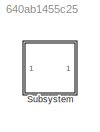
MODEL slx_640ab1455c25
KIND model
CONFIG AbsTol = auto
CONFIG EnableMultiTasking = off
CONFIG FixedStep = auto
CONFIG MaxStep = auto
CONFIG MinStep = auto
CONFIG RelTol = 1e-3
CONFIG SampleTimeConstraint = Unconstrained
CONFIG SolverName = VariableStepAuto
CONFIG StartTime = 0.0
CONFIG StopTime = 10.0
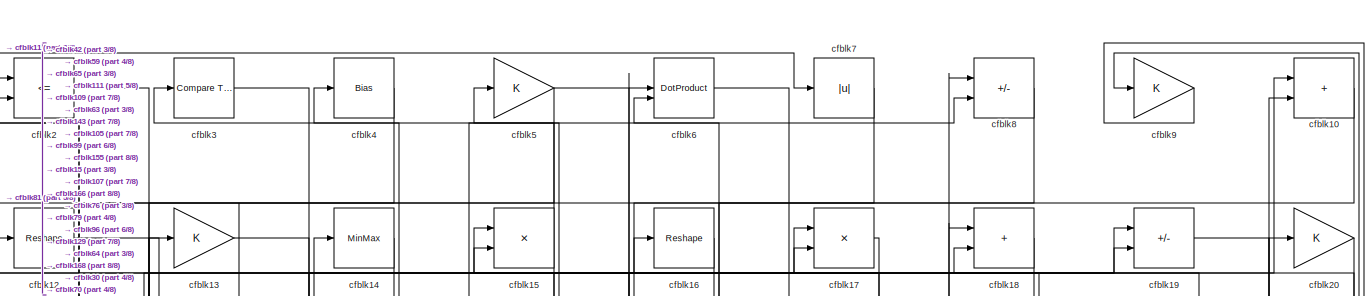
[diagram: Subsystem - part 1/8, full width, top band]
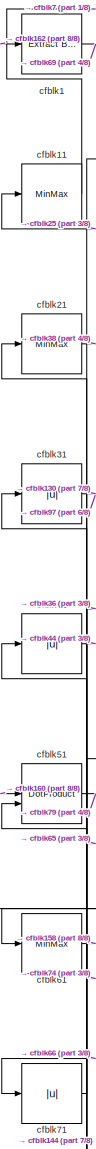
[diagram: Subsystem - part 2/8, top left region]
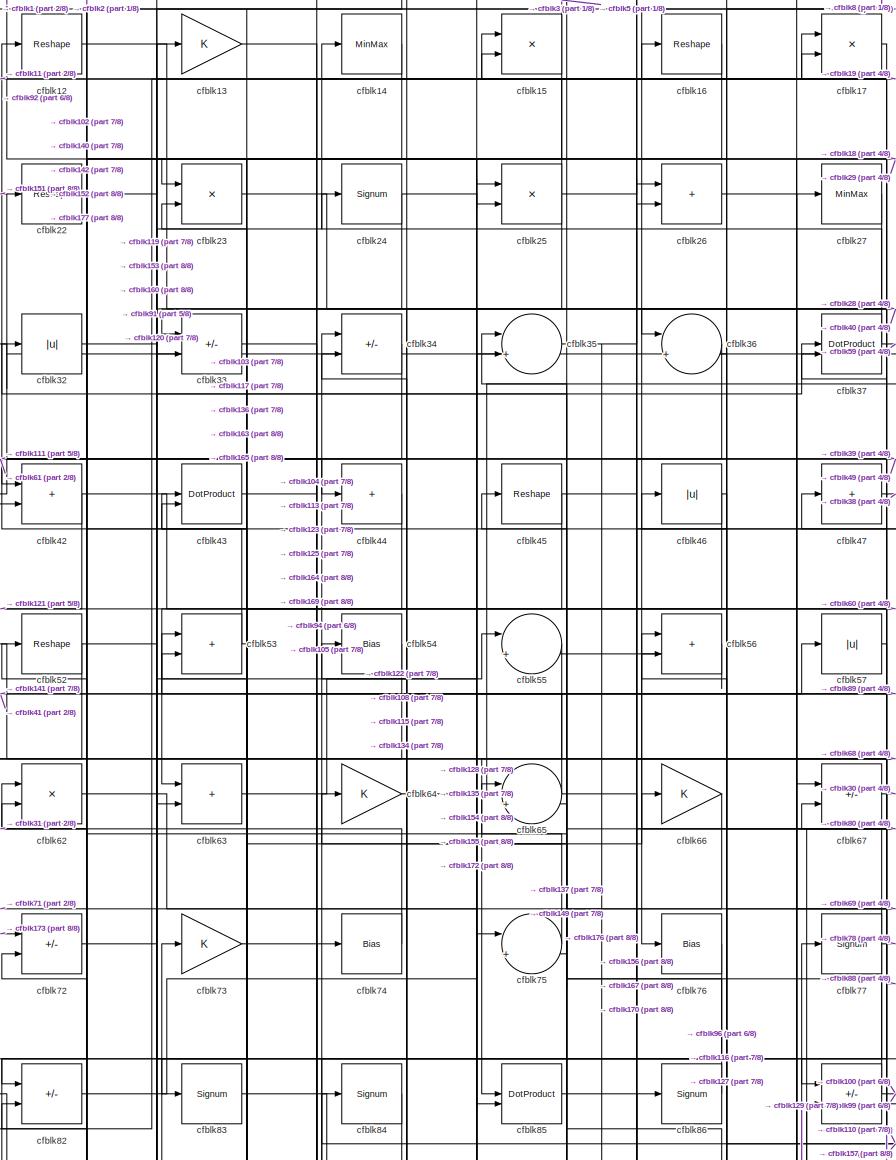
[diagram: Subsystem - part 3/8, top center region]
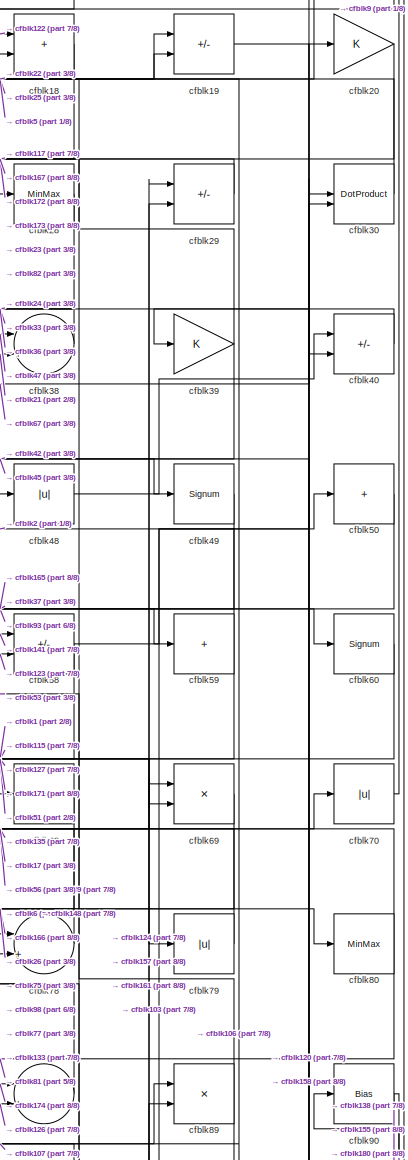
[diagram: Subsystem - part 4/8, top right region]
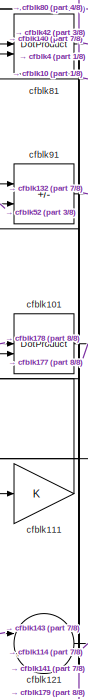
[diagram: Subsystem - part 5/8, middle left region]
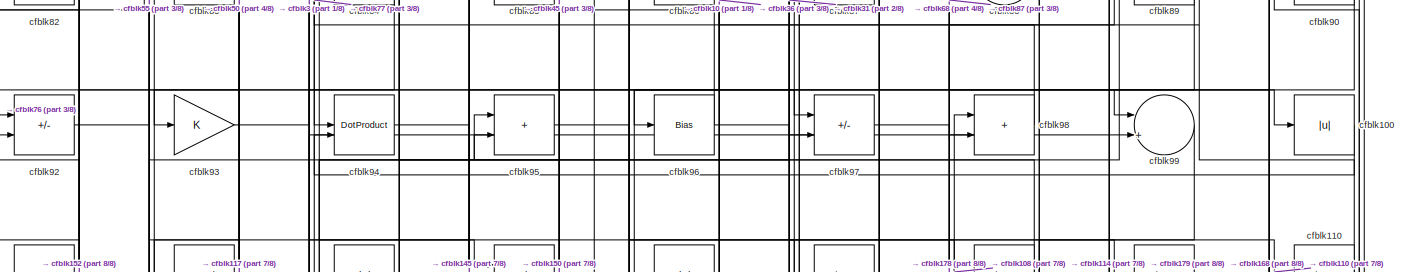
[diagram: Subsystem - part 6/8, full width, middle band]
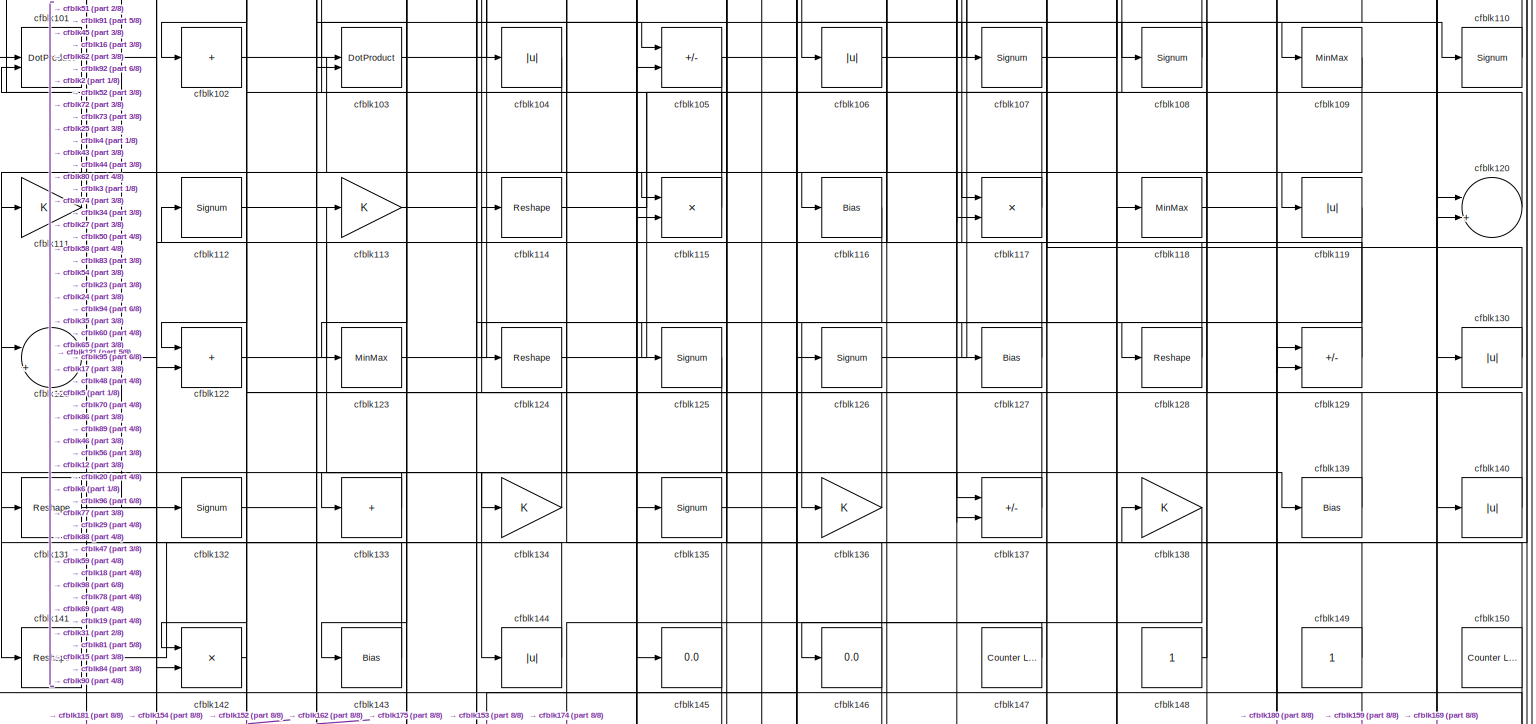
[diagram: Subsystem - part 7/8, full width, middle band]
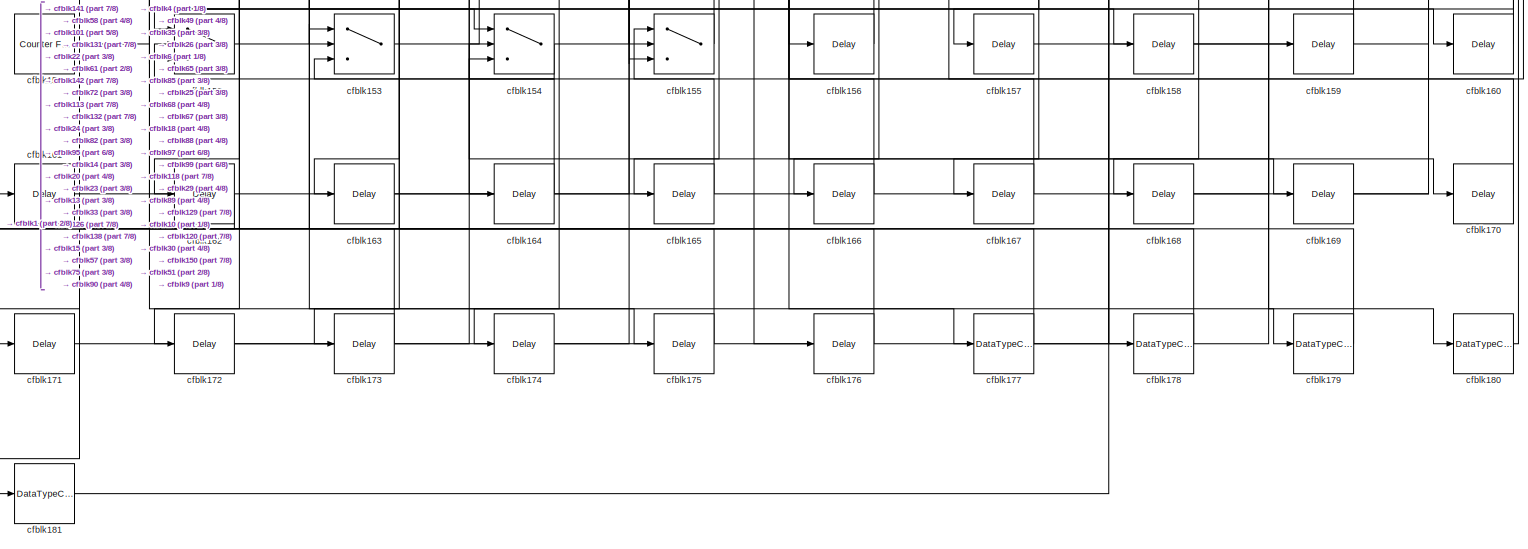
[diagram: Subsystem - part 8/8, full width, bottom band]
BLOCK [SubSystem] Subsystem
BLOCK [Reference] Subsystem/cfblk1  REF=simulink/Logic and Bit
Operations/Extract Bits
  LibrarySourceBlock = hdlsllib/Logic and Bit\nOperations/Extract Bits
  SourceBlock = simulink/Logic and Bit\nOperations/Extract Bits
  SourceType = Extract Bits
BLOCK [Sum] Subsystem/cfblk10
  IconShape = rectangular
  OutDataTypeStr = uint8
BLOCK [Abs] Subsystem/cfblk100
  OutDataTypeStr = uint8
  SaturateOnIntegerOverflow = off
BLOCK [DotProduct] Subsystem/cfblk101
  OutDataTypeStr = uint8
BLOCK [Sum] Subsystem/cfblk102
  IconShape = rectangular
  Inputs = +
  OutDataTypeStr = uint8
BLOCK [DotProduct] Subsystem/cfblk103
  OutDataTypeStr = uint8
BLOCK [Abs] Subsystem/cfblk104
  OutDataTypeStr = uint8
  SaturateOnIntegerOverflow = off
BLOCK [Sum] Subsystem/cfblk105
  IconShape = rectangular
  Inputs = +-
  OutDataTypeStr = uint8
BLOCK [Abs] Subsystem/cfblk106
  OutDataTypeStr = uint8
  SaturateOnIntegerOverflow = off
BLOCK [Signum] Subsystem/cfblk107
BLOCK [Signum] Subsystem/cfblk108
BLOCK [MinMax] Subsystem/cfblk109
  OutDataTypeStr = uint8
BLOCK [MinMax] Subsystem/cfblk11
  OutDataTypeStr = uint8
BLOCK [Signum] Subsystem/cfblk110
BLOCK [Gain] Subsystem/cfblk111
  OutDataTypeStr = uint8
BLOCK [Signum] Subsystem/cfblk112
BLOCK [Gain] Subsystem/cfblk113
  OutDataTypeStr = uint8
BLOCK [Reshape] Subsystem/cfblk114
BLOCK [Product] Subsystem/cfblk115
  Inputs = */
  OutDataTypeStr = uint8
  RndMeth = Zero
  SaturateOnIntegerOverflow = on
BLOCK [Bias] Subsystem/cfblk116
  Bias = 0.0
  SaturateOnIntegerOverflow = off
BLOCK [Product] Subsystem/cfblk117
  Inputs = */
  OutDataTypeStr = uint8
  RndMeth = Zero
  SaturateOnIntegerOverflow = on
BLOCK [MinMax] Subsystem/cfblk118
  OutDataTypeStr = uint8
BLOCK [Abs] Subsystem/cfblk119
  OutDataTypeStr = uint8
  SaturateOnIntegerOverflow = off
BLOCK [Reshape] Subsystem/cfblk12
BLOCK [Sum] Subsystem/cfblk120
  Inputs = |++
  OutDataTypeStr = uint8
BLOCK [Sum] Subsystem/cfblk121
  Inputs = |++
  OutDataTypeStr = uint8
BLOCK [Sum] Subsystem/cfblk122
  IconShape = rectangular
  OutDataTypeStr = uint8
BLOCK [MinMax] Subsystem/cfblk123
  OutDataTypeStr = uint8
BLOCK [Reshape] Subsystem/cfblk124
BLOCK [Signum] Subsystem/cfblk125
BLOCK [Signum] Subsystem/cfblk126
BLOCK [Bias] Subsystem/cfblk127
  Bias = 0.0
  SaturateOnIntegerOverflow = off
BLOCK [Reshape] Subsystem/cfblk128
BLOCK [Sum] Subsystem/cfblk129
  IconShape = rectangular
  Inputs = +-
  OutDataTypeStr = uint8
BLOCK [Gain] Subsystem/cfblk13
  OutDataTypeStr = uint8
BLOCK [Abs] Subsystem/cfblk130
  OutDataTypeStr = uint8
  SaturateOnIntegerOverflow = off
BLOCK [Reshape] Subsystem/cfblk131
BLOCK [Signum] Subsystem/cfblk132
BLOCK [Sum] Subsystem/cfblk133
  IconShape = rectangular
  Inputs = +
  OutDataTypeStr = uint8
BLOCK [Gain] Subsystem/cfblk134
  OutDataTypeStr = uint8
BLOCK [Signum] Subsystem/cfblk135
BLOCK [Gain] Subsystem/cfblk136
  OutDataTypeStr = uint8
BLOCK [Sum] Subsystem/cfblk137
  IconShape = rectangular
  Inputs = +-
  OutDataTypeStr = uint8
BLOCK [Gain] Subsystem/cfblk138
  OutDataTypeStr = uint8
BLOCK [Bias] Subsystem/cfblk139
  Bias = 0.0
  SaturateOnIntegerOverflow = off
BLOCK [MinMax] Subsystem/cfblk14
  OutDataTypeStr = uint8
BLOCK [Abs] Subsystem/cfblk140
  OutDataTypeStr = uint8
  SaturateOnIntegerOverflow = off
BLOCK [Reshape] Subsystem/cfblk141
BLOCK [Product] Subsystem/cfblk142
  Inputs = */
  OutDataTypeStr = uint8
  RndMeth = Zero
  SaturateOnIntegerOverflow = on
BLOCK [Bias] Subsystem/cfblk143
  Bias = 0.0
  SaturateOnIntegerOverflow = off
BLOCK [Abs] Subsystem/cfblk144
  OutDataTypeStr = uint8
  SaturateOnIntegerOverflow = off
BLOCK [Display] Subsystem/cfblk145
  Decimation = 1
BLOCK [Display] Subsystem/cfblk146
  Decimation = 1
BLOCK [Reference] Subsystem/cfblk147  REF=hdlsllib/Sources/Counter
Limited
  SourceBlock = hdlsllib/Sources/Counter\nLimited
  SourceType = Counter Limited
BLOCK [Constant] Subsystem/cfblk148
  OutDataTypeStr = uint8
  SampleTime = -1
BLOCK [Constant] Subsystem/cfblk149
  OutDataTypeStr = uint8
  SampleTime = -1
BLOCK [Product] Subsystem/cfblk15
  Inputs = */
  OutDataTypeStr = uint8
  RndMeth = Zero
  SaturateOnIntegerOverflow = on
BLOCK [Reference] Subsystem/cfblk150  REF=hdlsllib/Sources/Counter
Limited
  SourceBlock = hdlsllib/Sources/Counter\nLimited
  SourceType = Counter Limited
BLOCK [Reference] Subsystem/cfblk151  REF=hdlsllib/Sources/Counter
Free-Running
  SourceBlock = hdlsllib/Sources/Counter\nFree-Running
  SourceType = Counter Free-Running
BLOCK [Switch] Subsystem/cfblk152
  InputSameDT = off
  OutDataTypeStr = uint8
  SaturateOnIntegerOverflow = off
BLOCK [Switch] Subsystem/cfblk153
  InputSameDT = off
  OutDataTypeStr = uint8
  SaturateOnIntegerOverflow = off
BLOCK [Switch] Subsystem/cfblk154
  InputSameDT = off
  OutDataTypeStr = uint8
  SaturateOnIntegerOverflow = off
BLOCK [Switch] Subsystem/cfblk155
  InputSameDT = off
  OutDataTypeStr = uint8
  SaturateOnIntegerOverflow = off
BLOCK [Delay] Subsystem/cfblk156
  InputPortMap = u0
  SampleTime = 1
BLOCK [Delay] Subsystem/cfblk157
  InputPortMap = u0
  SampleTime = 1
BLOCK [Delay] Subsystem/cfblk158
  InputPortMap = u0
  SampleTime = 1
BLOCK [Delay] Subsystem/cfblk159
  InputPortMap = u0
  SampleTime = 1
BLOCK [Reshape] Subsystem/cfblk16
BLOCK [Delay] Subsystem/cfblk160
  InputPortMap = u0
  SampleTime = 1
BLOCK [Delay] Subsystem/cfblk161
  InputPortMap = u0
  SampleTime = 1
BLOCK [Delay] Subsystem/cfblk162
  InputPortMap = u0
  SampleTime = 1
BLOCK [Delay] Subsystem/cfblk163
  InputPortMap = u0
  SampleTime = 1
BLOCK [Delay] Subsystem/cfblk164
  InputPortMap = u0
  SampleTime = 1
BLOCK [Delay] Subsystem/cfblk165
  InputPortMap = u0
  SampleTime = 1
BLOCK [Delay] Subsystem/cfblk166
  InputPortMap = u0
  SampleTime = 1
BLOCK [Delay] Subsystem/cfblk167
  InputPortMap = u0
  SampleTime = 1
BLOCK [Delay] Subsystem/cfblk168
  InputPortMap = u0
  SampleTime = 1
BLOCK [Delay] Subsystem/cfblk169
  InputPortMap = u0
  SampleTime = 1
BLOCK [Product] Subsystem/cfblk17
  Inputs = */
  OutDataTypeStr = uint8
  RndMeth = Zero
  SaturateOnIntegerOverflow = on
BLOCK [Delay] Subsystem/cfblk170
  InputPortMap = u0
  SampleTime = 1
BLOCK [Delay] Subsystem/cfblk171
  InputPortMap = u0
  SampleTime = 1
BLOCK [Delay] Subsystem/cfblk172
  InputPortMap = u0
  SampleTime = 1
BLOCK [Delay] Subsystem/cfblk173
  InputPortMap = u0
  SampleTime = 1
BLOCK [Delay] Subsystem/cfblk174
  InputPortMap = u0
  SampleTime = 1
BLOCK [Delay] Subsystem/cfblk175
  InputPortMap = u0
  SampleTime = 1
BLOCK [Delay] Subsystem/cfblk176
  InputPortMap = u0
  SampleTime = 1
BLOCK [DataTypeConversion] Subsystem/cfblk177
  OutDataTypeStr = uint8
  RndMeth = Floor
  SaturateOnIntegerOverflow = off
BLOCK [DataTypeConversion] Subsystem/cfblk178
  OutDataTypeStr = uint8
  RndMeth = Floor
  SaturateOnIntegerOverflow = off
BLOCK [DataTypeConversion] Subsystem/cfblk179
  OutDataTypeStr = uint8
  RndMeth = Floor
  SaturateOnIntegerOverflow = off
BLOCK [Sum] Subsystem/cfblk18
  IconShape = rectangular
  OutDataTypeStr = uint8
BLOCK [DataTypeConversion] Subsystem/cfblk180
  OutDataTypeStr = uint8
  RndMeth = Floor
  SaturateOnIntegerOverflow = off
BLOCK [DataTypeConversion] Subsystem/cfblk181
  OutDataTypeStr = uint8
  RndMeth = Floor
  SaturateOnIntegerOverflow = off
BLOCK [Sum] Subsystem/cfblk19
  IconShape = rectangular
  Inputs = +-
  OutDataTypeStr = uint8
BLOCK [RelationalOperator] Subsystem/cfblk2
  InputSameDT = off
  Operator = <=
  OutDataTypeStr = boolean
BLOCK [Gain] Subsystem/cfblk20
  OutDataTypeStr = uint8
BLOCK [MinMax] Subsystem/cfblk21
  OutDataTypeStr = uint8
BLOCK [Reshape] Subsystem/cfblk22
BLOCK [Product] Subsystem/cfblk23
  Inputs = */
  OutDataTypeStr = uint8
  RndMeth = Zero
  SaturateOnIntegerOverflow = on
BLOCK [Signum] Subsystem/cfblk24
BLOCK [Product] Subsystem/cfblk25
  Inputs = */
  OutDataTypeStr = uint8
  RndMeth = Zero
  SaturateOnIntegerOverflow = on
BLOCK [Sum] Subsystem/cfblk26
  IconShape = rectangular
  OutDataTypeStr = uint8
BLOCK [MinMax] Subsystem/cfblk27
  OutDataTypeStr = uint8
BLOCK [MinMax] Subsystem/cfblk28
  OutDataTypeStr = uint8
BLOCK [Sum] Subsystem/cfblk29
  IconShape = rectangular
  Inputs = +-
  OutDataTypeStr = uint8
BLOCK [Reference] Subsystem/cfblk3  REF=hdlsllib/Logic and Bit
Operations/Compare
To Zero
  SourceBlock = hdlsllib/Logic and Bit\nOperations/Compare\nTo Zero
  SourceType = Compare To Zero
BLOCK [DotProduct] Subsystem/cfblk30
  OutDataTypeStr = uint8
BLOCK [Abs] Subsystem/cfblk31
  OutDataTypeStr = uint8
  SaturateOnIntegerOverflow = off
BLOCK [Abs] Subsystem/cfblk32
  OutDataTypeStr = uint8
  SaturateOnIntegerOverflow = off
BLOCK [Sum] Subsystem/cfblk33
  IconShape = rectangular
  Inputs = +-
  OutDataTypeStr = uint8
BLOCK [Sum] Subsystem/cfblk34
  IconShape = rectangular
  Inputs = +-
  OutDataTypeStr = uint8
BLOCK [Sum] Subsystem/cfblk35
  Inputs = |++
  OutDataTypeStr = uint8
BLOCK [Sum] Subsystem/cfblk36
  Inputs = |++
  OutDataTypeStr = uint8
BLOCK [DotProduct] Subsystem/cfblk37
  OutDataTypeStr = uint8
BLOCK [Sum] Subsystem/cfblk38
  Inputs = |++
  OutDataTypeStr = uint8
BLOCK [Gain] Subsystem/cfblk39
  OutDataTypeStr = uint8
BLOCK [Bias] Subsystem/cfblk4
  Bias = 0.0
  SaturateOnIntegerOverflow = off
BLOCK [Sum] Subsystem/cfblk40
  IconShape = rectangular
  Inputs = +-
  OutDataTypeStr = uint8
BLOCK [Abs] Subsystem/cfblk41
  OutDataTypeStr = uint8
  SaturateOnIntegerOverflow = off
BLOCK [Sum] Subsystem/cfblk42
  IconShape = rectangular
  OutDataTypeStr = uint8
BLOCK [DotProduct] Subsystem/cfblk43
  OutDataTypeStr = uint8
BLOCK [Sum] Subsystem/cfblk44
  IconShape = rectangular
  Inputs = +
  OutDataTypeStr = uint8
BLOCK [Reshape] Subsystem/cfblk45
BLOCK [Abs] Subsystem/cfblk46
  OutDataTypeStr = uint8
  SaturateOnIntegerOverflow = off
BLOCK [Sum] Subsystem/cfblk47
  IconShape = rectangular
  Inputs = +
  OutDataTypeStr = uint8
BLOCK [Abs] Subsystem/cfblk48
  OutDataTypeStr = uint8
  SaturateOnIntegerOverflow = off
BLOCK [Signum] Subsystem/cfblk49
BLOCK [Gain] Subsystem/cfblk5
  OutDataTypeStr = uint8
BLOCK [Sum] Subsystem/cfblk50
  IconShape = rectangular
  Inputs = +
  OutDataTypeStr = uint8
BLOCK [DotProduct] Subsystem/cfblk51
  OutDataTypeStr = uint8
BLOCK [Reshape] Subsystem/cfblk52
BLOCK [Sum] Subsystem/cfblk53
  IconShape = rectangular
  OutDataTypeStr = uint8
BLOCK [Bias] Subsystem/cfblk54
  Bias = 0.0
  SaturateOnIntegerOverflow = off
BLOCK [Sum] Subsystem/cfblk55
  Inputs = |++
  OutDataTypeStr = uint8
BLOCK [Sum] Subsystem/cfblk56
  IconShape = rectangular
  OutDataTypeStr = uint8
BLOCK [Abs] Subsystem/cfblk57
  OutDataTypeStr = uint8
  SaturateOnIntegerOverflow = off
BLOCK [Sum] Subsystem/cfblk58
  IconShape = rectangular
  Inputs = +-
  OutDataTypeStr = uint8
BLOCK [Sum] Subsystem/cfblk59
  IconShape = rectangular
  Inputs = +
  OutDataTypeStr = uint8
BLOCK [DotProduct] Subsystem/cfblk6
  OutDataTypeStr = uint8
BLOCK [Signum] Subsystem/cfblk60
BLOCK [MinMax] Subsystem/cfblk61
  OutDataTypeStr = uint8
BLOCK [Product] Subsystem/cfblk62
  Inputs = */
  OutDataTypeStr = uint8
  RndMeth = Zero
  SaturateOnIntegerOverflow = on
BLOCK [Sum] Subsystem/cfblk63
  IconShape = rectangular
  OutDataTypeStr = uint8
BLOCK [Gain] Subsystem/cfblk64
  OutDataTypeStr = uint8
BLOCK [Sum] Subsystem/cfblk65
  Inputs = |++
  OutDataTypeStr = uint8
BLOCK [Gain] Subsystem/cfblk66
  OutDataTypeStr = uint8
BLOCK [Sum] Subsystem/cfblk67
  IconShape = rectangular
  Inputs = +-
  OutDataTypeStr = uint8
BLOCK [MinMax] Subsystem/cfblk68
  OutDataTypeStr = uint8
BLOCK [Product] Subsystem/cfblk69
  Inputs = */
  OutDataTypeStr = uint8
  RndMeth = Zero
  SaturateOnIntegerOverflow = on
BLOCK [Abs] Subsystem/cfblk7
  OutDataTypeStr = uint8
  SaturateOnIntegerOverflow = off
BLOCK [Abs] Subsystem/cfblk70
  OutDataTypeStr = uint8
  SaturateOnIntegerOverflow = off
BLOCK [Abs] Subsystem/cfblk71
  OutDataTypeStr = uint8
  SaturateOnIntegerOverflow = off
BLOCK [Sum] Subsystem/cfblk72
  IconShape = rectangular
  Inputs = +-
  OutDataTypeStr = uint8
BLOCK [Gain] Subsystem/cfblk73
  OutDataTypeStr = uint8
BLOCK [Bias] Subsystem/cfblk74
  Bias = 0.0
  SaturateOnIntegerOverflow = off
BLOCK [Sum] Subsystem/cfblk75
  Inputs = |++
  OutDataTypeStr = uint8
BLOCK [Bias] Subsystem/cfblk76
  Bias = 0.0
  SaturateOnIntegerOverflow = off
BLOCK [Signum] Subsystem/cfblk77
BLOCK [Sum] Subsystem/cfblk78
  Inputs = |++
  OutDataTypeStr = uint8
BLOCK [Abs] Subsystem/cfblk79
  OutDataTypeStr = uint8
  SaturateOnIntegerOverflow = off
BLOCK [Sum] Subsystem/cfblk8
  IconShape = rectangular
  Inputs = +-
  OutDataTypeStr = uint8
BLOCK [MinMax] Subsystem/cfblk80
  OutDataTypeStr = uint8
BLOCK [DotProduct] Subsystem/cfblk81
  OutDataTypeStr = uint8
BLOCK [Sum] Subsystem/cfblk82
  IconShape = rectangular
  Inputs = +-
  OutDataTypeStr = uint8
BLOCK [Signum] Subsystem/cfblk83
BLOCK [Signum] Subsystem/cfblk84
BLOCK [DotProduct] Subsystem/cfblk85
  OutDataTypeStr = uint8
BLOCK [Signum] Subsystem/cfblk86
BLOCK [Sum] Subsystem/cfblk87
  IconShape = rectangular
  Inputs = +-
  OutDataTypeStr = uint8
BLOCK [Sum] Subsystem/cfblk88
  Inputs = |++
  OutDataTypeStr = uint8
BLOCK [Product] Subsystem/cfblk89
  Inputs = */
  OutDataTypeStr = uint8
  RndMeth = Zero
  SaturateOnIntegerOverflow = on
BLOCK [Gain] Subsystem/cfblk9
  OutDataTypeStr = uint8
BLOCK [Bias] Subsystem/cfblk90
  Bias = 0.0
  SaturateOnIntegerOverflow = off
BLOCK [Sum] Subsystem/cfblk91
  IconShape = rectangular
  Inputs = +-
  OutDataTypeStr = uint8
BLOCK [Sum] Subsystem/cfblk92
  IconShape = rectangular
  Inputs = +-
  OutDataTypeStr = uint8
BLOCK [Gain] Subsystem/cfblk93
  OutDataTypeStr = uint8
BLOCK [DotProduct] Subsystem/cfblk94
  OutDataTypeStr = uint8
BLOCK [Sum] Subsystem/cfblk95
  IconShape = rectangular
  OutDataTypeStr = uint8
BLOCK [Bias] Subsystem/cfblk96
  Bias = 0.0
  SaturateOnIntegerOverflow = off
BLOCK [Sum] Subsystem/cfblk97
  IconShape = rectangular
  Inputs = +-
  OutDataTypeStr = uint8
BLOCK [Sum] Subsystem/cfblk98
  IconShape = rectangular
  OutDataTypeStr = uint8
BLOCK [Sum] Subsystem/cfblk99
  Inputs = |++
  OutDataTypeStr = uint8
LINE Subsystem/cfblk100:1 -> Subsystem/cfblk94:2
LINE Subsystem/cfblk101:1 -> Subsystem/cfblk177:1
LINE Subsystem/cfblk102:1 -> Subsystem/cfblk115:2
LINE Subsystem/cfblk103:1 -> Subsystem/cfblk50:1
LINE Subsystem/cfblk104:1 -> Subsystem/cfblk142:1
NET Subsystem/cfblk105:1 -> Subsystem/cfblk117:1, Subsystem/cfblk142:2
LINE Subsystem/cfblk106:1 -> Subsystem/cfblk29:1
LINE Subsystem/cfblk107:1 -> Subsystem/cfblk89:1
LINE Subsystem/cfblk108:1 -> Subsystem/cfblk34:2
LINE Subsystem/cfblk109:1 -> Subsystem/cfblk141:1
LINE Subsystem/cfblk10:1 -> Subsystem/cfblk96:1
NET Subsystem/cfblk110:1 -> Subsystem/cfblk15:2, Subsystem/cfblk84:1
LINE Subsystem/cfblk111:1 -> Subsystem/cfblk10:1
LINE Subsystem/cfblk112:1 -> Subsystem/cfblk139:1
LINE Subsystem/cfblk113:1 -> Subsystem/cfblk74:1
LINE Subsystem/cfblk114:1 -> Subsystem/cfblk98:1
LINE Subsystem/cfblk115:1 -> Subsystem/cfblk54:1
LINE Subsystem/cfblk116:1 -> Subsystem/cfblk124:1
NET Subsystem/cfblk117:1 -> Subsystem/cfblk43:2, Subsystem/cfblk92:2
LINE Subsystem/cfblk118:1 -> Subsystem/cfblk180:1
LINE Subsystem/cfblk119:1 -> Subsystem/cfblk136:1
LINE Subsystem/cfblk11:1 -> Subsystem/cfblk7:1
LINE Subsystem/cfblk120:1 -> Subsystem/cfblk73:1
LINE Subsystem/cfblk121:1 -> Subsystem/cfblk114:1
LINE Subsystem/cfblk122:1 -> Subsystem/cfblk18:1
NET Subsystem/cfblk123:1 -> Subsystem/cfblk27:1, Subsystem/cfblk58:2
LINE Subsystem/cfblk124:1 -> Subsystem/cfblk69:1
LINE Subsystem/cfblk125:1 -> Subsystem/cfblk144:1
LINE Subsystem/cfblk126:1 -> Subsystem/cfblk88:2
LINE Subsystem/cfblk127:1 -> Subsystem/cfblk46:1
LINE Subsystem/cfblk128:1 -> Subsystem/cfblk56:2
LINE Subsystem/cfblk129:1 -> Subsystem/cfblk77:1
NET Subsystem/cfblk12:1 -> Subsystem/cfblk137:1, Subsystem/cfblk87:2
LINE Subsystem/cfblk130:1 -> Subsystem/cfblk47:1
LINE Subsystem/cfblk131:1 -> Subsystem/cfblk154:1
LINE Subsystem/cfblk132:1 -> Subsystem/cfblk175:1
LINE Subsystem/cfblk133:1 -> Subsystem/cfblk131:1
LINE Subsystem/cfblk134:1 -> Subsystem/cfblk112:1
NET Subsystem/cfblk135:1 -> Subsystem/cfblk35:1, Subsystem/cfblk48:1, Subsystem/cfblk70:1
LINE Subsystem/cfblk136:1 -> Subsystem/cfblk43:1
NET Subsystem/cfblk137:1 -> Subsystem/cfblk34:1, Subsystem/cfblk65:2
LINE Subsystem/cfblk138:1 -> Subsystem/cfblk174:1
LINE Subsystem/cfblk139:1 -> Subsystem/cfblk18:2
LINE Subsystem/cfblk13:1 -> Subsystem/cfblk164:1
LINE Subsystem/cfblk140:1 -> Subsystem/cfblk62:1
NET Subsystem/cfblk141:1 -> Subsystem/cfblk17:2, Subsystem/cfblk181:1, Subsystem/cfblk58:1, Subsystem/cfblk86:1, Subsystem/cfblk91:1
NET Subsystem/cfblk142:1 -> Subsystem/cfblk162:1, Subsystem/cfblk62:2
LINE Subsystem/cfblk143:1 -> Subsystem/cfblk121:1
LINE Subsystem/cfblk144:1 -> Subsystem/cfblk51:2
LINE Subsystem/cfblk147:1 -> Subsystem/cfblk146:1
LINE Subsystem/cfblk148:1 -> Subsystem/cfblk78:1
LINE Subsystem/cfblk149:1 -> Subsystem/cfblk65:1
LINE Subsystem/cfblk14:1 -> Subsystem/cfblk163:1
NET Subsystem/cfblk150:1 -> Subsystem/cfblk152:3, Subsystem/cfblk95:1
LINE Subsystem/cfblk151:1 -> Subsystem/cfblk22:1
NET Subsystem/cfblk152:1 -> Subsystem/cfblk113:1, Subsystem/cfblk72:2, Subsystem/cfblk95:2
LINE Subsystem/cfblk153:1 -> Subsystem/cfblk126:1
NET Subsystem/cfblk154:1 -> Subsystem/cfblk152:2, Subsystem/cfblk57:1
LINE Subsystem/cfblk155:1 -> Subsystem/cfblk4:1
LINE Subsystem/cfblk156:1 -> Subsystem/cfblk25:1
LINE Subsystem/cfblk157:1 -> Subsystem/cfblk89:2
LINE Subsystem/cfblk158:1 -> Subsystem/cfblk30:2
LINE Subsystem/cfblk159:1 -> Subsystem/cfblk129:1
NET Subsystem/cfblk15:1 -> Subsystem/cfblk155:2, Subsystem/cfblk33:2, Subsystem/cfblk3:1
LINE Subsystem/cfblk160:1 -> Subsystem/cfblk51:1
LINE Subsystem/cfblk161:1 -> Subsystem/cfblk29:2
LINE Subsystem/cfblk162:1 -> Subsystem/cfblk1:1
LINE Subsystem/cfblk163:1 -> Subsystem/cfblk35:2
LINE Subsystem/cfblk164:1 -> Subsystem/cfblk154:2
LINE Subsystem/cfblk165:1 -> Subsystem/cfblk23:2
LINE Subsystem/cfblk166:1 -> Subsystem/cfblk6:1
LINE Subsystem/cfblk167:1 -> Subsystem/cfblk26:1
LINE Subsystem/cfblk168:1 -> Subsystem/cfblk10:2
LINE Subsystem/cfblk169:1 -> Subsystem/cfblk120:2
LINE Subsystem/cfblk16:1 -> Subsystem/cfblk102:1
LINE Subsystem/cfblk170:1 -> Subsystem/cfblk67:1
LINE Subsystem/cfblk171:1 -> Subsystem/cfblk154:3
LINE Subsystem/cfblk172:1 -> Subsystem/cfblk75:1
LINE Subsystem/cfblk173:1 -> Subsystem/cfblk72:1
LINE Subsystem/cfblk174:1 -> Subsystem/cfblk88:1
LINE Subsystem/cfblk175:1 -> Subsystem/cfblk153:1
LINE Subsystem/cfblk176:1 -> Subsystem/cfblk153:3
NET Subsystem/cfblk177:1 -> Subsystem/cfblk159:1, Subsystem/cfblk161:1, Subsystem/cfblk82:2
LINE Subsystem/cfblk178:1 -> Subsystem/cfblk101:1
LINE Subsystem/cfblk179:1 -> Subsystem/cfblk101:2
LINE Subsystem/cfblk17:1 -> Subsystem/cfblk87:1
LINE Subsystem/cfblk180:1 -> Subsystem/cfblk90:1
LINE Subsystem/cfblk181:1 -> Subsystem/cfblk118:1
NET Subsystem/cfblk18:1 -> Subsystem/cfblk167:1, Subsystem/cfblk82:1
LINE Subsystem/cfblk19:1 -> Subsystem/cfblk120:1
NET Subsystem/cfblk1:1 -> Subsystem/cfblk25:2, Subsystem/cfblk69:2
NET Subsystem/cfblk20:1 -> Subsystem/cfblk117:2, Subsystem/cfblk172:1, Subsystem/cfblk173:1
LINE Subsystem/cfblk21:1 -> Subsystem/cfblk38:2
NET Subsystem/cfblk22:1 -> Subsystem/cfblk152:1, Subsystem/cfblk19:1
LINE Subsystem/cfblk23:1 -> Subsystem/cfblk135:1
NET Subsystem/cfblk24:1 -> Subsystem/cfblk128:1, Subsystem/cfblk153:2, Subsystem/cfblk40:2
NET Subsystem/cfblk25:1 -> Subsystem/cfblk11:1, Subsystem/cfblk123:1, Subsystem/cfblk19:2
LINE Subsystem/cfblk26:1 -> Subsystem/cfblk80:1
LINE Subsystem/cfblk27:1 -> Subsystem/cfblk134:1
LINE Subsystem/cfblk28:1 -> Subsystem/cfblk33:1
LINE Subsystem/cfblk29:1 -> Subsystem/cfblk23:1
LINE Subsystem/cfblk2:1 -> Subsystem/cfblk109:1
LINE Subsystem/cfblk30:1 -> Subsystem/cfblk5:1
NET Subsystem/cfblk31:1 -> Subsystem/cfblk130:1, Subsystem/cfblk97:2
LINE Subsystem/cfblk32:1 -> Subsystem/cfblk24:1
LINE Subsystem/cfblk33:1 -> Subsystem/cfblk169:1
LINE Subsystem/cfblk34:1 -> Subsystem/cfblk111:1
NET Subsystem/cfblk35:1 -> Subsystem/cfblk176:1, Subsystem/cfblk26:2
LINE Subsystem/cfblk36:1 -> Subsystem/cfblk61:1
NET Subsystem/cfblk37:1 -> Subsystem/cfblk14:1, Subsystem/cfblk59:1
LINE Subsystem/cfblk38:1 -> Subsystem/cfblk36:1
NET Subsystem/cfblk39:1 -> Subsystem/cfblk28:1, Subsystem/cfblk42:2
NET Subsystem/cfblk3:1 -> Subsystem/cfblk105:2, Subsystem/cfblk99:2
LINE Subsystem/cfblk40:1 -> Subsystem/cfblk39:1
LINE Subsystem/cfblk41:1 -> Subsystem/cfblk44:1
NET Subsystem/cfblk42:1 -> Subsystem/cfblk121:2, Subsystem/cfblk60:1
NET Subsystem/cfblk43:1 -> Subsystem/cfblk104:1, Subsystem/cfblk16:1
LINE Subsystem/cfblk44:1 -> Subsystem/cfblk103:1
NET Subsystem/cfblk45:1 -> Subsystem/cfblk122:2, Subsystem/cfblk49:1, Subsystem/cfblk68:1
NET Subsystem/cfblk46:1 -> Subsystem/cfblk116:1, Subsystem/cfblk63:1
LINE Subsystem/cfblk47:1 -> Subsystem/cfblk38:1
LINE Subsystem/cfblk48:1 -> Subsystem/cfblk40:1
LINE Subsystem/cfblk49:1 -> Subsystem/cfblk165:1
NET Subsystem/cfblk4:1 -> Subsystem/cfblk143:1, Subsystem/cfblk81:1
LINE Subsystem/cfblk50:1 -> Subsystem/cfblk93:1
LINE Subsystem/cfblk51:1 -> Subsystem/cfblk79:1
NET Subsystem/cfblk52:1 -> Subsystem/cfblk137:2, Subsystem/cfblk13:1, Subsystem/cfblk91:2
NET Subsystem/cfblk53:1 -> Subsystem/cfblk12:1, Subsystem/cfblk83:1
LINE Subsystem/cfblk54:1 -> Subsystem/cfblk103:2
LINE Subsystem/cfblk55:1 -> Subsystem/cfblk85:1
LINE Subsystem/cfblk56:1 -> Subsystem/cfblk55:2
LINE Subsystem/cfblk57:1 -> Subsystem/cfblk157:1
NET Subsystem/cfblk58:1 -> Subsystem/cfblk171:1, Subsystem/cfblk20:1
NET Subsystem/cfblk59:1 -> Subsystem/cfblk127:1, Subsystem/cfblk2:2
NET Subsystem/cfblk5:1 -> Subsystem/cfblk107:1, Subsystem/cfblk63:2
LINE Subsystem/cfblk60:1 -> Subsystem/cfblk115:1
LINE Subsystem/cfblk61:1 -> Subsystem/cfblk158:1
LINE Subsystem/cfblk62:1 -> Subsystem/cfblk85:2
LINE Subsystem/cfblk63:1 -> Subsystem/cfblk8:2
LINE Subsystem/cfblk64:1 -> Subsystem/cfblk8:1
NET Subsystem/cfblk65:1 -> Subsystem/cfblk170:1, Subsystem/cfblk2:1, Subsystem/cfblk41:1
LINE Subsystem/cfblk66:1 -> Subsystem/cfblk71:1
LINE Subsystem/cfblk67:1 -> Subsystem/cfblk30:1
NET Subsystem/cfblk68:1 -> Subsystem/cfblk166:1, Subsystem/cfblk98:2
LINE Subsystem/cfblk69:1 -> Subsystem/cfblk75:2
LINE Subsystem/cfblk6:1 -> Subsystem/cfblk129:2
LINE Subsystem/cfblk70:1 -> Subsystem/cfblk9:1
LINE Subsystem/cfblk71:1 -> Subsystem/cfblk21:1
NET Subsystem/cfblk72:1 -> Subsystem/cfblk119:1, Subsystem/cfblk37:1
LINE Subsystem/cfblk73:1 -> Subsystem/cfblk125:1
LINE Subsystem/cfblk74:1 -> Subsystem/cfblk31:1
NET Subsystem/cfblk75:1 -> Subsystem/cfblk52:1, Subsystem/cfblk53:1
LINE Subsystem/cfblk76:1 -> Subsystem/cfblk92:1
NET Subsystem/cfblk77:1 -> Subsystem/cfblk32:1, Subsystem/cfblk78:2, Subsystem/cfblk94:1
LINE Subsystem/cfblk78:1 -> Subsystem/cfblk56:1
LINE Subsystem/cfblk79:1 -> Subsystem/cfblk6:2
LINE Subsystem/cfblk7:1 -> Subsystem/cfblk76:1
NET Subsystem/cfblk80:1 -> Subsystem/cfblk133:1, Subsystem/cfblk17:1, Subsystem/cfblk37:2, Subsystem/cfblk81:2
LINE Subsystem/cfblk81:1 -> Subsystem/cfblk140:1
NET Subsystem/cfblk82:1 -> Subsystem/cfblk160:1, Subsystem/cfblk66:1
LINE Subsystem/cfblk83:1 -> Subsystem/cfblk105:1
LINE Subsystem/cfblk84:1 -> Subsystem/cfblk122:1
LINE Subsystem/cfblk85:1 -> Subsystem/cfblk156:1
LINE Subsystem/cfblk86:1 -> Subsystem/cfblk15:1
NET Subsystem/cfblk87:1 -> Subsystem/cfblk100:1, Subsystem/cfblk64:1, Subsystem/cfblk99:1
LINE Subsystem/cfblk88:1 -> Subsystem/cfblk67:2
NET Subsystem/cfblk89:1 -> Subsystem/cfblk106:1, Subsystem/cfblk53:2
LINE Subsystem/cfblk8:1 -> Subsystem/cfblk42:1
NET Subsystem/cfblk90:1 -> Subsystem/cfblk138:1, Subsystem/cfblk155:3
LINE Subsystem/cfblk91:1 -> Subsystem/cfblk132:1
LINE Subsystem/cfblk92:1 -> Subsystem/cfblk55:1
LINE Subsystem/cfblk93:1 -> Subsystem/cfblk97:1
LINE Subsystem/cfblk94:1 -> Subsystem/cfblk145:1
NET Subsystem/cfblk95:1 -> Subsystem/cfblk108:1, Subsystem/cfblk179:1
NET Subsystem/cfblk96:1 -> Subsystem/cfblk110:1, Subsystem/cfblk45:1
LINE Subsystem/cfblk97:1 -> Subsystem/cfblk178:1
LINE Subsystem/cfblk98:1 -> Subsystem/cfblk36:2
LINE Subsystem/cfblk99:1 -> Subsystem/cfblk168:1
LINE Subsystem/cfblk9:1 -> Subsystem/cfblk155:1
note: NET lines group one-source signal fan-out (src -> all destinations, sorted); 1:1 wires keep LINE
